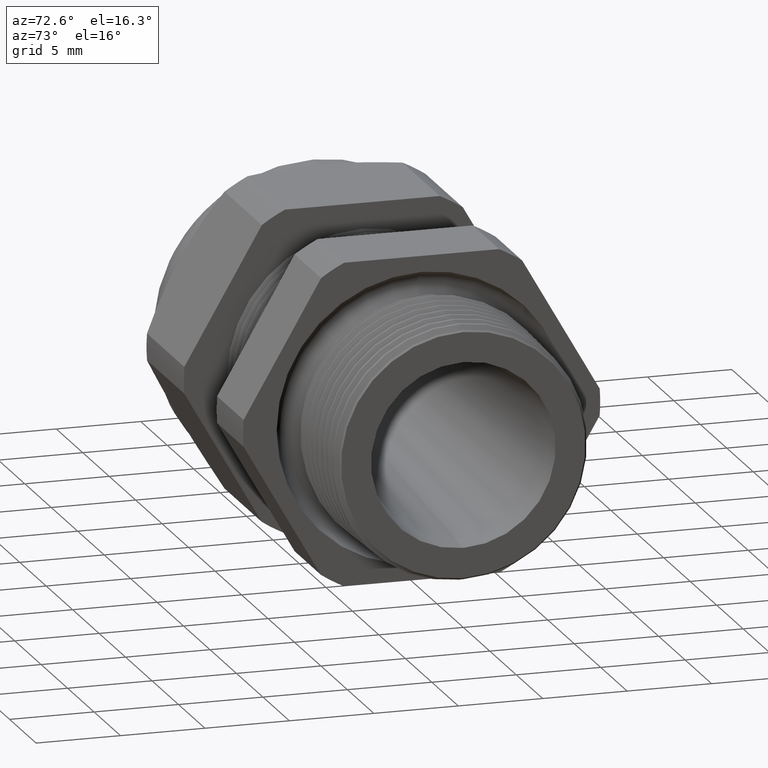
[diagram: clean part render]
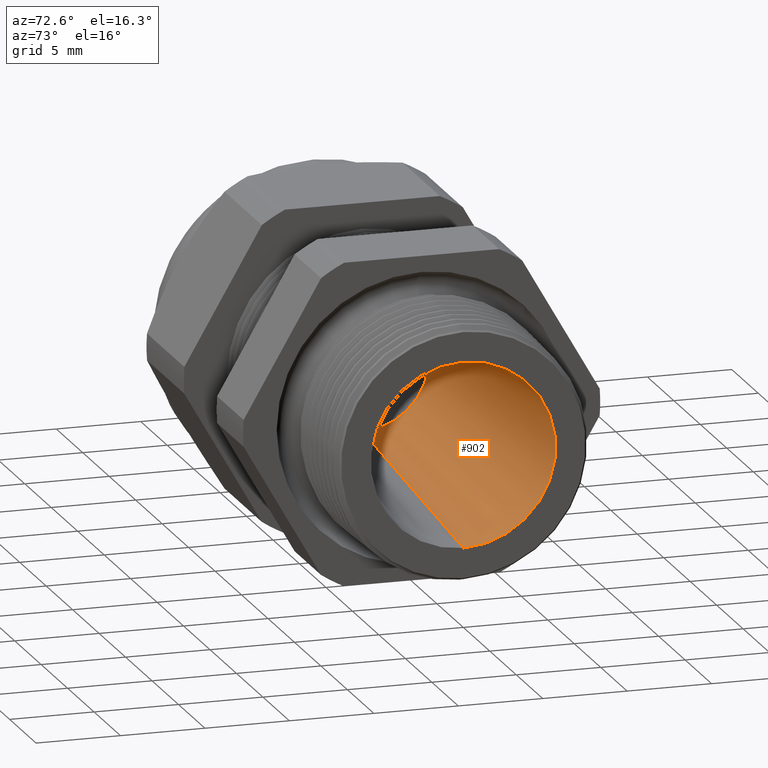
[diagram: same view with one face highlighted and labeled with its STEP entity id]
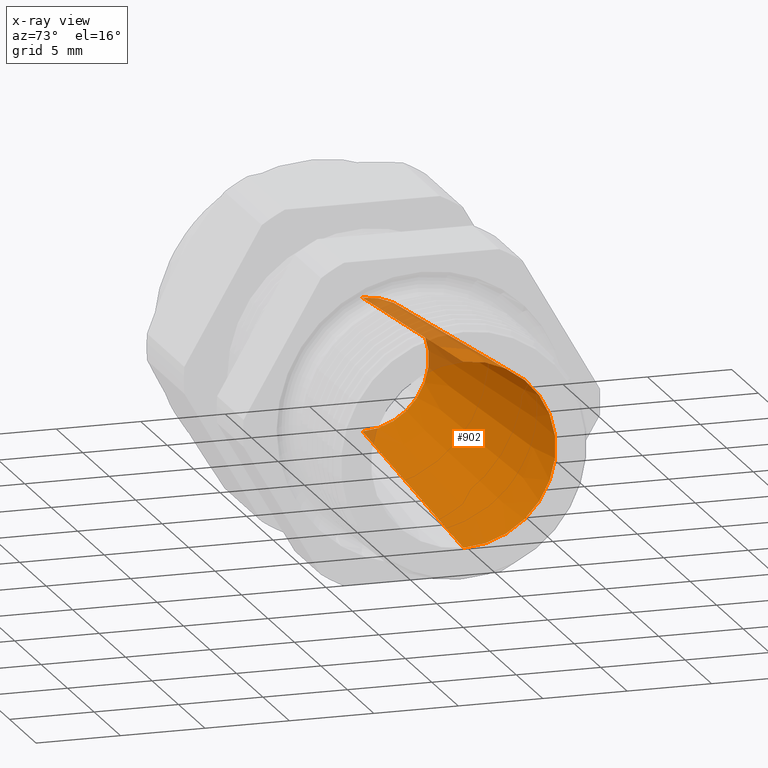
[diagram: x-ray of the same camera — body ghosted, the highlighted face saturated]
A machine part, auxiliary view. The second image highlights one B-rep face of the part: STEP entity #902.
The next image is the same camera in x-ray: the body ghosted, the highlighted face saturated — about 8% of this face is hidden behind the body in this view.
In plain terms, the highlighted conical surface has half-angle 4.594 deg.
Its self-contained STEP definition (entity closure, byte-faithful):
#900 = EDGE_CURVE ( 'NONE', #1436, #1433, #3206, .T. ) ;
#902 = ADVANCED_FACE ( 'NONE', ( #3201 ), #3200, .F. ) ;
#903 = EDGE_LOOP ( 'NONE', ( #904, #905, #907, #908 ) ) ;
#904 = ORIENTED_EDGE ( 'NONE', *, *, #1432, .F. ) ;
#905 = ORIENTED_EDGE ( 'NONE', *, *, #906, .F. ) ;
#906 = EDGE_CURVE ( 'NONE', #1425, #1499, #3194, .T. ) ;
#907 = ORIENTED_EDGE ( 'NONE', *, *, #1438, .T. ) ;
#908 = ORIENTED_EDGE ( 'NONE', *, *, #900, .T. ) ;
#1425 = VERTEX_POINT ( 'NONE', #4032 ) ;
#1432 = EDGE_CURVE ( 'NONE', #1499, #1433, #4085, .T. ) ;
#1433 = VERTEX_POINT ( 'NONE', #4081 ) ;
#1436 = VERTEX_POINT ( 'NONE', #4075 ) ;
#1438 = EDGE_CURVE ( 'NONE', #1425, #1436, #4074, .T. ) ;
#1499 = VERTEX_POINT ( 'NONE', #4161 ) ;
#3191 = DIRECTION ( 'NONE',  ( 0.0000000000000000000, 0.0000000000000000000, -1.000000000000000000 ) ) ;
#3192 = DIRECTION ( 'NONE',  ( 1.000000000000000000, 0.0000000000000000000, 0.0000000000000000000 ) ) ;
#3193 = AXIS2_PLACEMENT_3D ( 'NONE', #3199, #3192, #3191 ) ;
#3194 = CIRCLE ( 'NONE', #3193, 0.1550000000000000000 ) ;
#3195 = DIRECTION ( 'NONE',  ( 0.0000000000000000000, 0.0000000000000000000, -1.000000000000000000 ) ) ;
#3196 = DIRECTION ( 'NONE',  ( 1.000000000000000000, 0.0000000000000000000, 0.0000000000000000000 ) ) ;
#3197 = CARTESIAN_POINT ( 'NONE',  ( -0.7508661417322833900, 0.0000000000000000000, 0.0000000000000000000 ) ) ;
#3198 = AXIS2_PLACEMENT_3D ( 'NONE', #3197, #3196, #3195 ) ;
#3199 = CARTESIAN_POINT ( 'NONE',  ( -0.7508661417322833900, 0.0000000000000000000, 0.0000000000000000000 ) ) ;
#3200 = CONICAL_SURFACE ( 'NONE', #3198, 0.1550000000000000000, 0.08018540344487304300 ) ;
#3201 = FACE_OUTER_BOUND ( 'NONE', #903, .T. ) ;
#3202 = DIRECTION ( 'NONE',  ( 0.0000000000000000000, 0.0000000000000000000, -1.000000000000000000 ) ) ;
#3203 = DIRECTION ( 'NONE',  ( 1.000000000000000000, 0.0000000000000000000, 0.0000000000000000000 ) ) ;
#3204 = CARTESIAN_POINT ( 'NONE',  ( 0.0000000000000000000, 0.0000000000000000000, 0.0000000000000000000 ) ) ;
#3205 = AXIS2_PLACEMENT_3D ( 'NONE', #3204, #3203, #3202 ) ;
#3206 = CIRCLE ( 'NONE', #3205, 0.2153378781036457400 ) ;
#4032 = CARTESIAN_POINT ( 'NONE',  ( -0.7508661417322833900, 0.0000000000000000000, -0.1550000000000000000 ) ) ;
#4071 = DIRECTION ( 'NONE',  ( 0.9967868727108976100, 0.0000000000000000000, -0.08009950306480641300 ) ) ;
#4072 = VECTOR ( 'NONE', #4071, 39.37007874015748900 ) ;
#4073 = CARTESIAN_POINT ( 'NONE',  ( -0.7508661417322833900, 0.0000000000000000000, -0.1550000000000000000 ) ) ;
#4074 = LINE ( 'NONE', #4073, #4072 ) ;
#4075 = CARTESIAN_POINT ( 'NONE',  ( 0.0000000000000000000, 0.0000000000000000000, -0.2153378781036457400 ) ) ;
#4081 = CARTESIAN_POINT ( 'NONE',  ( 0.0000000000000000000, 2.637128431548127100E-017, 0.2153378781036457400 ) ) ;
#4082 = DIRECTION ( 'NONE',  ( 0.9967868727108976100, 9.809360004160878300E-018, 0.08009950306480641300 ) ) ;
#4083 = VECTOR ( 'NONE', #4082, 39.37007874015748900 ) ;
#4084 = CARTESIAN_POINT ( 'NONE',  ( -0.7508661417322833900, 1.898202538678397300E-017, 0.1550000000000000000 ) ) ;
#4085 = LINE ( 'NONE', #4084, #4083 ) ;
#4161 = CARTESIAN_POINT ( 'NONE',  ( -0.7508661417322833900, 2.267665485113262000E-017, 0.1550000000000000000 ) ) ;